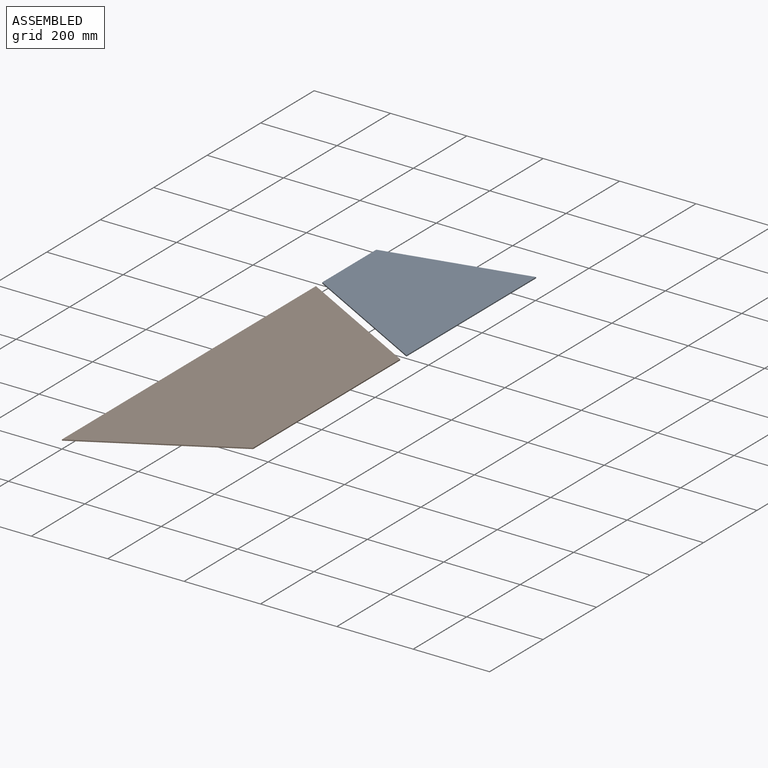
[diagram: assembled view]
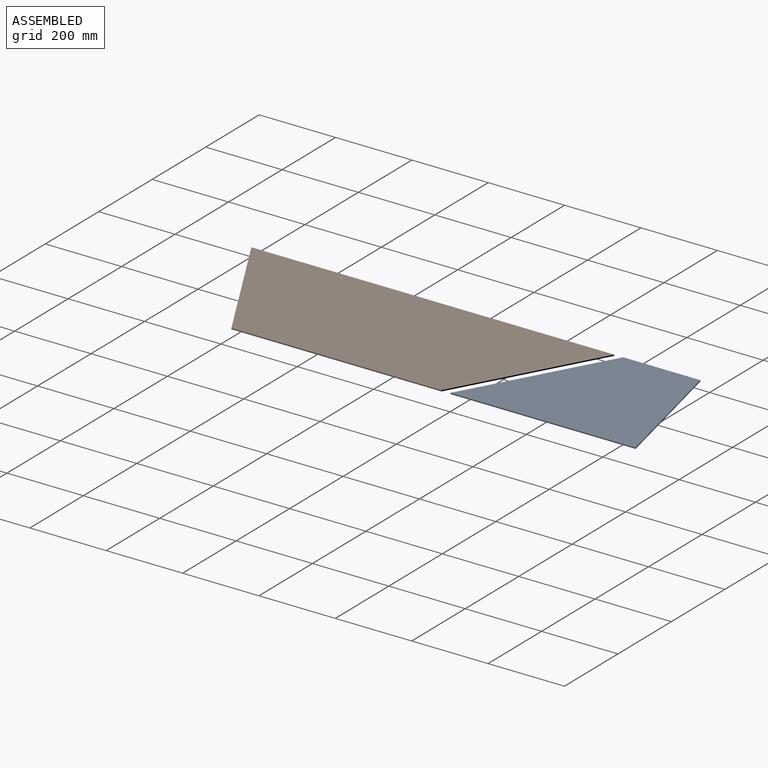
[diagram: assembled view, second angle]
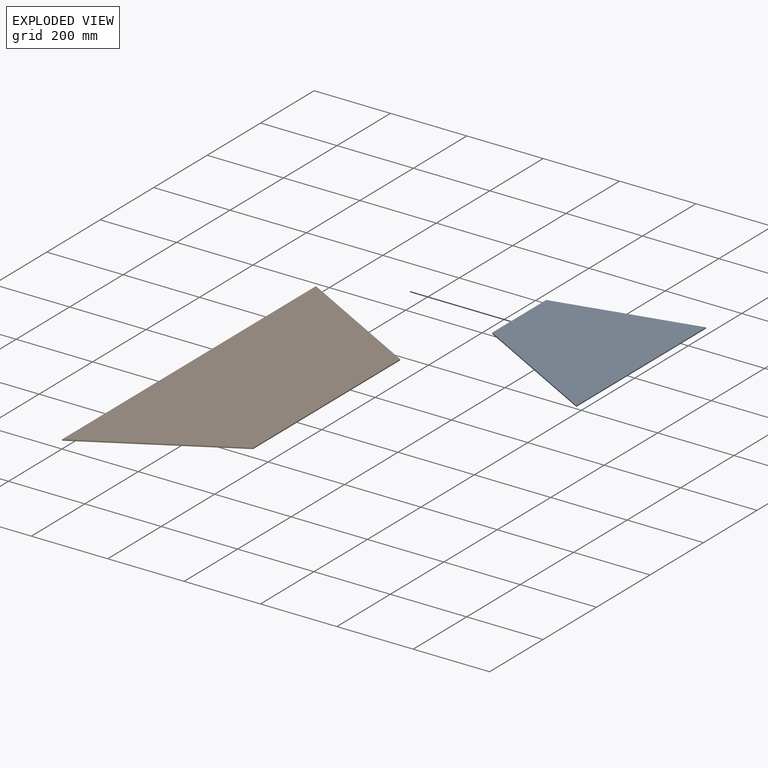
[diagram: exploded view]
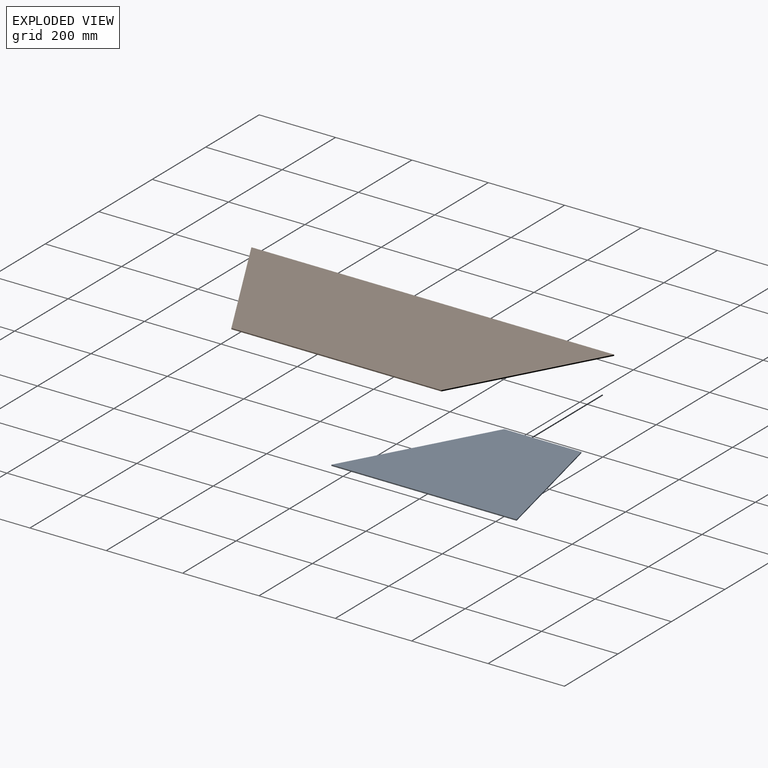
[diagram: exploded view, second angle]
ASSEMBLY  parts=2 mates=2
PART A: 6 faces, bbox 485x202.5x301.7 mm
  f0: plane 202.16x2.5mm, normal (0,0.55,0.83), area 606.5mm2, adj f1,f3,f4,f5
  f1: plane 301.66x202.5mm, normal (-0.87,0.27,0.4), area 1236.9mm2, adj f0,f2,f4,f5
  f2: plane 485x2.5mm, normal (0,-0.55,-0.83), area 1455mm2, adj f1,f3,f4,f5
  f3: plane 301.66x202.5mm, normal (0.97,0.12,0.19), area 1109.8mm2, adj f0,f2,f4,f5
  f4: plane 485x300mm, normal (0,-0.83,0.55), area 123879mm2, adj f0,f1,f2,f3
  f5: plane 485x300mm, normal (0,0.83,-0.55), area 123879mm2, adj f0,f1,f2,f3
PART B: 6 faces, bbox 202.5x950x301.7 mm
  f0: plane 950x2.5mm, normal (-0.55,0,-0.83), area 2850mm2, adj f1,f3,f4,f5
  f1: plane 301.66x202.5mm, normal (0.27,0.87,0.4), area 1236.9mm2, adj f0,f2,f4,f5
  f2: plane 550x2.5mm, normal (0.55,0,0.83), area 1650mm2, adj f1,f3,f4,f5
  f3: plane 301.66x202.5mm, normal (0.27,-0.87,0.4), area 1236.9mm2, adj f0,f2,f4,f5
  f4: plane 950x300mm, normal (-0.83,0,0.55), area 270416.3mm2, adj f0,f1,f2,f3
  f5: plane 950x300mm, normal (0.83,0,-0.55), area 270416.3mm2, adj f0,f1,f2,f3
PLACE A rot(axis=(-0.43,-0.43,0.8),102.9deg) t=(-166.41,773.59,-790.45)mm
PLACE B rot(axis=(0,1,0),56.3deg) t=(0,950,0)mm
MATE planar B.f0 <-> A.f0  axis (-1,0,0) through (0,475,1.5)mm
MATE planar B.f4 <-> A.f4  axis (0,0,1) through (164.25,475,3)mm
